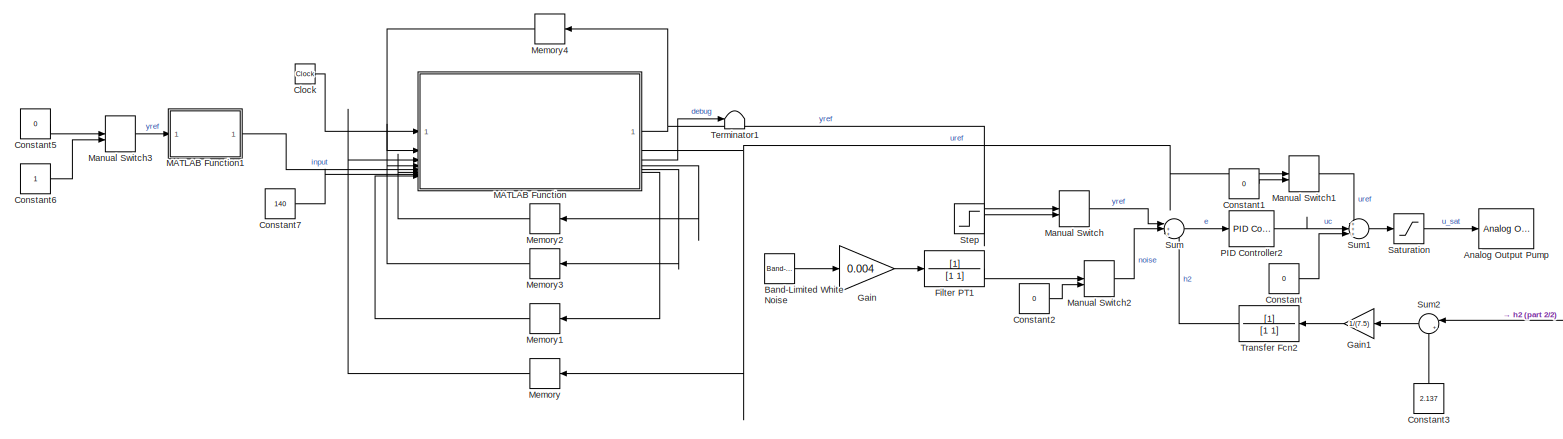
[diagram: root canvas - part 1/2, most of the canvas]
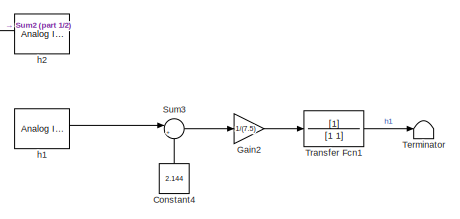
[diagram: root canvas - part 2/2, bottom right region]
MODEL slx_12d0cdc12875
KIND model
CONFIG AbsTol = auto
CONFIG EnableMultiTasking = off
CONFIG FixedStep = auto
CONFIG MaxStep = auto
CONFIG MinStep = auto
CONFIG RelTol = 1e-3
CONFIG SampleTimeConstraint = Unconstrained
CONFIG SolverName = VariableStepAuto
CONFIG StartTime = 0.0
CONFIG StopTime = inf
BLOCK [Reference] Analog Output Pump  REF=sldrtlib/Analog Output
  AttributesFormatString = National Instruments\nPCI-6221 [auto]
  SourceBlock = sldrtlib/Analog Output
  SourceType = Simulink Desktop Real-Time Analog Output
BLOCK [Reference] Band-Limited White Noise  REF=simulink/Sources/Band-Limited
White Noise
  SourceBlock = simulink/Sources/Band-Limited\nWhite Noise
  SourceType = Band-Limited White Noise.
BLOCK [Clock] Clock
BLOCK [Constant] Constant
  Value = 0
BLOCK [Constant] Constant1
  Value = 0
BLOCK [Constant] Constant2
  Value = 0
BLOCK [Constant] Constant3
  NameLocation = right
  Value = 2.137
BLOCK [Constant] Constant4
  NameLocation = right
  Value = 2.144
BLOCK [Constant] Constant5
  Value = 0
BLOCK [Constant] Constant6
BLOCK [Constant] Constant7
  Value = 140
BLOCK [TransferFcn] Filter PT1
  Denominator = [1 1]
BLOCK [Gain] Gain
  Gain = 0.004
BLOCK [Gain] Gain1
  Gain = 1/(7.5)
  NameLocation = top
BLOCK [Gain] Gain2
  Gain = 1/(7.5)
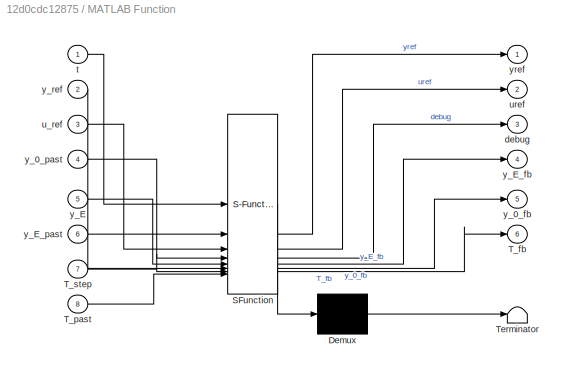
BLOCK [SubSystem] MATLAB Function
  ErrorFcn = Stateflow.Translate.translate
  PermitHierarchicalResolution = ExplicitOnly
  SFBlockType = MATLAB Function
  TreatAsAtomicUnit = on
BLOCK [Demux] MATLAB Function/ Demux 
  Outputs = 1
BLOCK [S-Function] MATLAB Function/ SFunction 
  EnableBusSupport = on
  FunctionName = sf_sfun
  Parameters = A_t,K_pump,a_1,a_2,d_w
  PortCounts = [8 7]
  SFcnIsStateOwnerBlock = off
  SFunctionDeploymentMode = off
  Tag = Stateflow S-Function 2
BLOCK [Terminator] MATLAB Function/ Terminator 
BLOCK [Outport] MATLAB Function/T_fb
  Port = 6
BLOCK [Inport] MATLAB Function/T_past
  Port = 8
BLOCK [Inport] MATLAB Function/T_step
  Port = 7
BLOCK [Outport] MATLAB Function/debug
  Port = 3
BLOCK [Inport] MATLAB Function/t
BLOCK [Inport] MATLAB Function/u_ref
  Port = 3
BLOCK [Outport] MATLAB Function/uref
  Port = 2
BLOCK [Outport] MATLAB Function/y_0_fb
  Port = 5
BLOCK [Inport] MATLAB Function/y_0_past
  Port = 4
BLOCK [Inport] MATLAB Function/y_E
  Port = 5
BLOCK [Outport] MATLAB Function/y_E_fb
  Port = 4
BLOCK [Inport] MATLAB Function/y_E_past
  Port = 6
BLOCK [Inport] MATLAB Function/y_ref
  Port = 2
BLOCK [Outport] MATLAB Function/yref
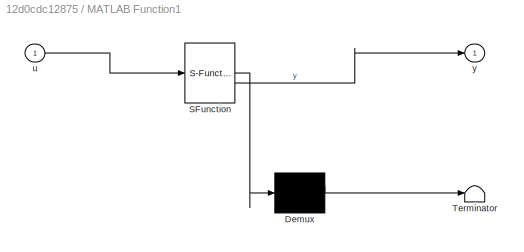
BLOCK [SubSystem] MATLAB Function1
  ErrorFcn = Stateflow.Translate.translate
  PermitHierarchicalResolution = ExplicitOnly
  SFBlockType = MATLAB Function
  TreatAsAtomicUnit = on
BLOCK [Demux] MATLAB Function1/ Demux 
  Outputs = 1
BLOCK [S-Function] MATLAB Function1/ SFunction 
  EnableBusSupport = on
  FunctionName = sf_sfun
  PortCounts = [1 2]
  SFcnIsStateOwnerBlock = off
  SFunctionDeploymentMode = off
  Tag = Stateflow S-Function 3
BLOCK [Terminator] MATLAB Function1/ Terminator 
BLOCK [Inport] MATLAB Function1/u
BLOCK [Outport] MATLAB Function1/y
BLOCK [ManualSwitch] Manual Switch
BLOCK [ManualSwitch] Manual Switch1
BLOCK [ManualSwitch] Manual Switch2
  CurrentSetting = 0
BLOCK [ManualSwitch] Manual Switch3
  CurrentSetting = 0
BLOCK [Memory] Memory
  NameLocation = top
BLOCK [Memory] Memory1
  NameLocation = top
BLOCK [Memory] Memory2
  NameLocation = top
BLOCK [Memory] Memory3
  InitialCondition = initial(1)
  NameLocation = top
BLOCK [Memory] Memory4
  InitialCondition = initial(1)
  NameLocation = top
BLOCK [Reference] PID Controller2  REF=slpidlib/PID Controller
  LibrarySourceBlock = simulink/Continuous/PID Controller
  SourceBlock = slpidlib/PID Controller
  SourceType = PID 1dof
BLOCK [Saturate] Saturation
  LowerLimit = 0
  UpperLimit = u_max
BLOCK [Step] Step
  After = 0.08
  SampleTime = 0
BLOCK [Sum] Sum
  Inputs = |++-
BLOCK [Sum] Sum1
  Inputs = +++|
BLOCK [Sum] Sum2
  Inputs = |+-
  NameLocation = top
BLOCK [Sum] Sum3
  Inputs = |+-
BLOCK [Terminator] Terminator
BLOCK [Terminator] Terminator1
BLOCK [TransferFcn] Transfer Fcn1
  Denominator = [1 1]
BLOCK [TransferFcn] Transfer Fcn2
  Denominator = [1 1]
  NameLocation = top
BLOCK [Reference] h1  REF=sldrtlib/Analog Input
  AttributesFormatString = National Instruments\nPCI-6221 [auto]
  SourceBlock = sldrtlib/Analog Input
  SourceType = Simulink Desktop Real-Time Analog Input
BLOCK [Reference] h2  REF=sldrtlib/Analog Input
  AttributesFormatString = National Instruments\nPCI-6221 [auto]
  NameLocation = top
  SourceBlock = sldrtlib/Analog Input
  SourceType = Simulink Desktop Real-Time Analog Input
LINE Band-Limited White Noise:1 -> Gain:1
LINE Clock:1 -> MATLAB Function:1
LINE Constant1:1 -> Manual Switch1:2
LINE Constant2:1 -> Manual Switch2:2
LINE Constant3:1 -> Sum2:2
LINE Constant4:1 -> Sum3:2
LINE Constant5:1 -> Manual Switch3:1
LINE Constant6:1 -> Manual Switch3:2
LINE Constant7:1 -> MATLAB Function:7
LINE Constant:1 -> Sum1:3
LINE Filter PT1:1 -> Manual Switch2:1
LINE Gain1:1 -> Transfer Fcn2:1
LINE Gain2:1 -> Transfer Fcn1:1
LINE Gain:1 -> Filter PT1:1
LINE MATLAB Function1:1 -> MATLAB Function:5
NET MATLAB Function:1 -> Manual Switch:1, Memory4:1
NET MATLAB Function:2 -> Manual Switch1:1, Memory:1
LINE MATLAB Function:3 -> Terminator1:1
LINE MATLAB Function:4 -> Memory2:1
LINE MATLAB Function:5 -> Memory3:1
LINE MATLAB Function:6 -> Memory1:1
LINE Manual Switch1:1 -> Sum1:1
LINE Manual Switch2:1 -> Sum:2
LINE Manual Switch3:1 -> MATLAB Function1:1
LINE Manual Switch:1 -> Sum:1
LINE Memory1:1 -> MATLAB Function:8
LINE Memory2:1 -> MATLAB Function:6
LINE Memory3:1 -> MATLAB Function:4
LINE Memory4:1 -> MATLAB Function:2
LINE Memory:1 -> MATLAB Function:3
LINE PID Controller2:1 -> Sum1:2
LINE Saturation:1 -> Analog Output Pump:1
LINE Step:1 -> Manual Switch:2
LINE Sum1:1 -> Saturation:1
LINE Sum2:1 -> Gain1:1
LINE Sum3:1 -> Gain2:1
LINE Sum:1 -> PID Controller2:1
LINE Transfer Fcn1:1 -> Terminator:1
LINE Transfer Fcn2:1 -> Sum:3
LINE h1:1 -> Sum3:1
LINE h2:1 -> Sum2:1
note: NET lines group one-source signal fan-out (src -> all destinations, sorted); 1:1 wires keep LINE
CHART MATLAB Function states=1 transitions=1
  STATE_LABEL 'eML_blk_kernel()'
  STATE_LABEL 'SCRIPT:\nfunction [yref, uref, debug, y_E_fb, y_0_fb, T_fb] = trajectory_planning(t, y_ref, u_ref, y_0_past, y_E, y_E_past, T_step, T_past,d_w, A_t, K_pump,a_1, a_2)\n    % t: Current simulation time\n    % y_0: Initial height of the ball\n    % y_T: Desired height of the ball\n    % T: Duration of the trajectory\n    % tau_w: Fan time constant\n    % a3, a2, a1: System coefficients\n    % k_w: Fan gain\n\n...<+1624ch>'
CHART MATLAB Function1 states=1 transitions=1
  STATE_LABEL 'eML_blk_kernel()'
  STATE_LABEL 'SCRIPT:\nfunction y = fcn(u)\n\nif(u)\n    y = 0.04;\nelse\n    y = 0.08;\nend\n'
CHART  states=0 transitions=0
CHART  states=0 transitions=0
